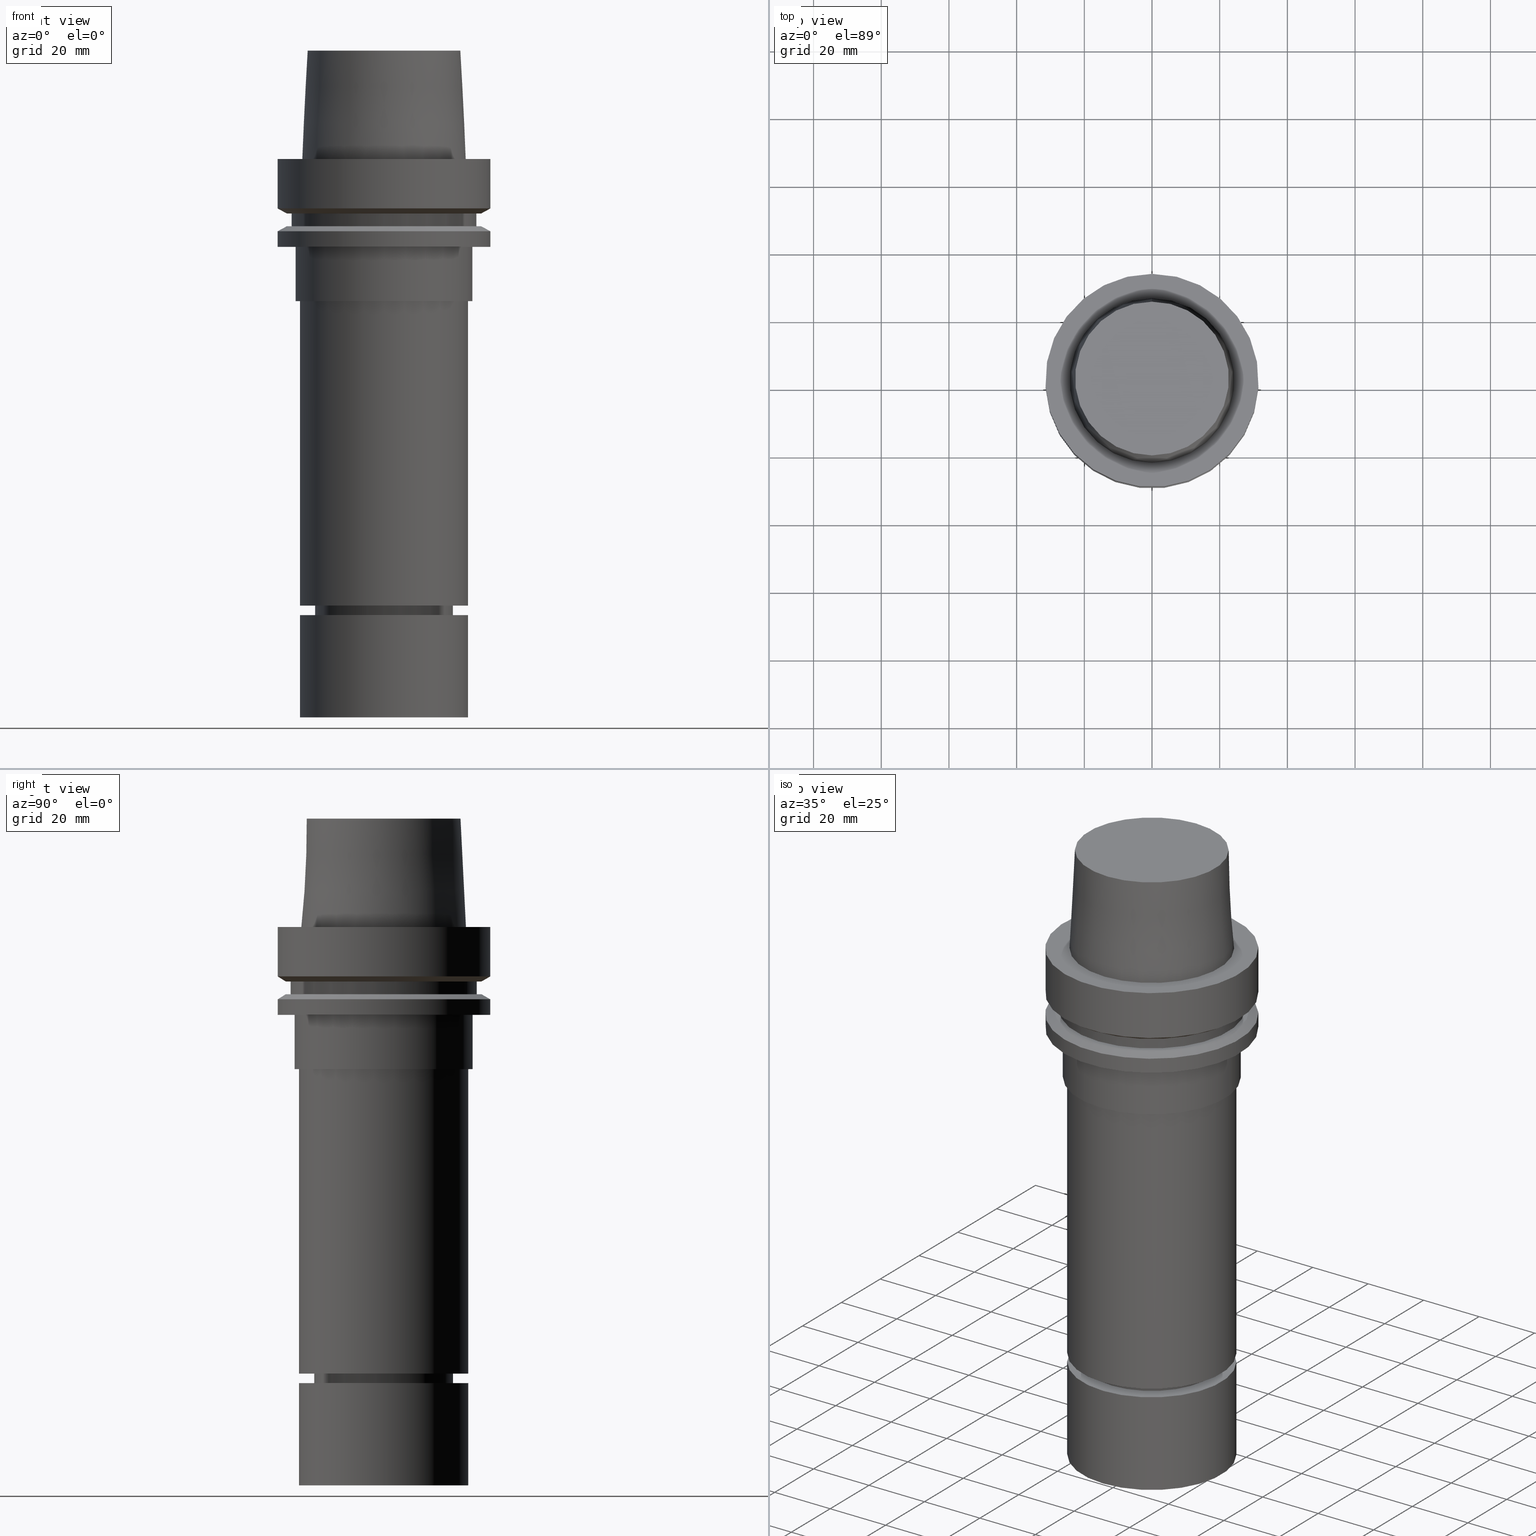
[diagram: canonical four-view strip — front | top / right | iso, engineering-drawing reading convention]
A machine part, canonical four-view strip (front | top / right | iso — engineering-drawing reading convention). The complete STEP part file that produces these views, byte-faithful:
ISO-10303-21;
HEADER;
FILE_DESCRIPTION((''),'1');
FILE_NAME('U:/Translate/02_3D_Field-HP\X2\FF71FF6FFF8CFF9F5916\X0\2013/02_Step_Field-HP\X2\FF71FF6FFF8CFF9F5916\X0\2013/HSK-A63-MEGAER32-165NL.stp','2016-06-22T00:53:57',(''),(''),'Spatial Interop R21 SP3','Kubotek KeyCreator 2011 V10.0.2 (22737)',' ');
FILE_SCHEMA(('automotive_design'));
ENDSEC;
DATA;
#1=MECHANICAL_DESIGN_GEOMETRIC_PRESENTATION_REPRESENTATION(' ',(#14,#15,#16,#17,#18,#19,#20,#21,#22,#23,#24,#25,#26,#27,#28,#29,#30,#31,#32,#33,#34,#35,#36,#37,#38,#39,#40,#41,#42,#43,#44,#45,#46,#47,#48,#49,#50,#51,#52,#53,#54,#55,#56,#57,#58,#59),#10);
#2=PRODUCT_DEFINITION_CONTEXT('',#60,'design');
#3=APPLICATION_PROTOCOL_DEFINITION('INTERNATIONAL STANDARD','automotive_design',1994,#60);
#4=PRODUCT_CATEGORY_RELATIONSHIP('NONE','NONE',#61,#62);
#5=SHAPE_DEFINITION_REPRESENTATION(#63,#64);
#6=PRODUCT_DEFINITION_CONTEXT('',#65,'design');
#7=APPLICATION_PROTOCOL_DEFINITION('INTERNATIONAL STANDARD','automotive_design',1994,#65);
#8=PRODUCT_CATEGORY_RELATIONSHIP('NONE','NONE',#66,#67);
#9=SHAPE_DEFINITION_REPRESENTATION(#68,#69);
#10= (GEOMETRIC_REPRESENTATION_CONTEXT(3)GLOBAL_UNCERTAINTY_ASSIGNED_CONTEXT((#72))GLOBAL_UNIT_ASSIGNED_CONTEXT((#74,#75,#76))REPRESENTATION_CONTEXT('NONE','WORKSPACE'));
#14=STYLED_ITEM('',(#78),#79);
#15=STYLED_ITEM('',(#80,#81),#82);
#16=STYLED_ITEM('',(#83),#84);
#17=STYLED_ITEM('',(#85,#86),#87);
#18=STYLED_ITEM('',(#88,#89),#90);
#19=STYLED_ITEM('',(#91,#92),#93);
#20=STYLED_ITEM('',(#94),#95);
#21=STYLED_ITEM('',(#96,#97),#98);
#22=STYLED_ITEM('',(#99),#100);
#23=STYLED_ITEM('',(#101,#102),#103);
#24=STYLED_ITEM('',(#104),#105);
#25=STYLED_ITEM('',(#106,#107),#108);
#26=STYLED_ITEM('',(#109,#110),#111);
#27=STYLED_ITEM('',(#112,#113),#114);
#28=STYLED_ITEM('',(#115,#116),#117);
#29=STYLED_ITEM('',(#118),#119);
#30=STYLED_ITEM('',(#120,#121),#122);
#31=STYLED_ITEM('',(#123,#124),#125);
#32=STYLED_ITEM('',(#126),#127);
#33=STYLED_ITEM('',(#128),#129);
#34=STYLED_ITEM('',(#130,#131),#132);
#35=STYLED_ITEM('',(#133),#134);
#36=STYLED_ITEM('',(#135,#136),#137);
#37=STYLED_ITEM('',(#138),#139);
#38=STYLED_ITEM('',(#140,#141),#142);
#39=STYLED_ITEM('',(#143,#144),#145);
#40=STYLED_ITEM('',(#146,#147),#148);
#41=STYLED_ITEM('',(#149),#150);
#42=STYLED_ITEM('',(#151),#152);
#43=STYLED_ITEM('',(#153),#154);
#44=STYLED_ITEM('',(#155),#156);
#45=STYLED_ITEM('',(#157,#158),#159);
#46=STYLED_ITEM('',(#160,#161),#162);
#47=STYLED_ITEM('',(#163),#164);
#48=STYLED_ITEM('',(#165,#166),#167);
#49=STYLED_ITEM('',(#168,#169),#170);
#50=STYLED_ITEM('',(#171),#172);
#51=STYLED_ITEM('',(#173,#174),#175);
#52=STYLED_ITEM('',(#176),#177);
#53=STYLED_ITEM('',(#178,#179),#180);
#54=STYLED_ITEM('',(#181),#182);
#55=STYLED_ITEM('',(#183,#184),#185);
#56=STYLED_ITEM('',(#186,#187),#188);
#57=STYLED_ITEM('',(#189),#190);
#58=STYLED_ITEM('',(#191),#192);
#59=STYLED_ITEM('',(#193),#194);
#60=APPLICATION_CONTEXT(' ');
#61=PRODUCT_CATEGORY('part','NONE');
#62=PRODUCT_RELATED_PRODUCT_CATEGORY('detail',' ',(#195));
#63=PRODUCT_DEFINITION_SHAPE('NONE','NONE',#196);
#64=ADVANCED_BREP_SHAPE_REPRESENTATION('Unnamed[1]',(#175,#197),#10);
#65=APPLICATION_CONTEXT(' ');
#66=PRODUCT_CATEGORY('part','NONE');
#67=PRODUCT_RELATED_PRODUCT_CATEGORY('detail',' ',(#198));
#68=PRODUCT_DEFINITION_SHAPE('NONE','NONE',#199);
#69=ADVANCED_BREP_SHAPE_REPRESENTATION('Unnamed[1]',(#114,#200),#10);
#72=UNCERTAINTY_MEASURE_WITH_UNIT(LENGTH_MEASURE(1.0E-006),#74,'','');
#74= (CONVERSION_BASED_UNIT('MILLIMETRE',#203)LENGTH_UNIT()NAMED_UNIT(#206));
#75= (NAMED_UNIT(#208)PLANE_ANGLE_UNIT()SI_UNIT($,.RADIAN.));
#76= (NAMED_UNIT(#208)SOLID_ANGLE_UNIT()SI_UNIT($,.STERADIAN.));
#78=PRESENTATION_STYLE_ASSIGNMENT((#214));
#79=EDGE_CURVE('Unnamed[1]',#215,#215,#216,.T.);
#80=PRESENTATION_STYLE_ASSIGNMENT((#217));
#81=PRESENTATION_STYLE_ASSIGNMENT((#218));
#82=ADVANCED_FACE('Unnamed[1]',(#219,#220),#221,.T.);
#83=PRESENTATION_STYLE_ASSIGNMENT((#222));
#84=EDGE_CURVE('Unnamed[1]',#223,#223,#224,.T.);
#85=PRESENTATION_STYLE_ASSIGNMENT((#225));
#86=PRESENTATION_STYLE_ASSIGNMENT((#226));
#87=ADVANCED_FACE('Unnamed[1]',(#227,#228),#229,.T.);
#88=PRESENTATION_STYLE_ASSIGNMENT((#230));
#89=PRESENTATION_STYLE_ASSIGNMENT((#231));
#90=ADVANCED_FACE('Unnamed[1]',(#232,#233),#234,.T.);
#91=PRESENTATION_STYLE_ASSIGNMENT((#235));
#92=PRESENTATION_STYLE_ASSIGNMENT((#236));
#93=ADVANCED_FACE('Unnamed[1]',(#237,#238),#239,.T.);
#94=PRESENTATION_STYLE_ASSIGNMENT((#240));
#95=EDGE_CURVE('Unnamed[1]',#241,#241,#242,.T.);
#96=PRESENTATION_STYLE_ASSIGNMENT((#243));
#97=PRESENTATION_STYLE_ASSIGNMENT((#244));
#98=ADVANCED_FACE('Unnamed[1]',(#245,#246),#247,.T.);
#99=PRESENTATION_STYLE_ASSIGNMENT((#248));
#100=EDGE_CURVE('Unnamed[1]',#249,#249,#250,.T.);
#101=PRESENTATION_STYLE_ASSIGNMENT((#251));
#102=PRESENTATION_STYLE_ASSIGNMENT((#252));
#103=ADVANCED_FACE('Unnamed[1]',(#253,#254),#255,.T.);
#104=PRESENTATION_STYLE_ASSIGNMENT((#256));
#105=EDGE_CURVE('Unnamed[1]',#257,#257,#258,.T.);
#106=PRESENTATION_STYLE_ASSIGNMENT((#259));
#107=PRESENTATION_STYLE_ASSIGNMENT((#260));
#108=ADVANCED_FACE('Unnamed[1]',(#261),#262,.T.);
#109=PRESENTATION_STYLE_ASSIGNMENT((#263));
#110=PRESENTATION_STYLE_ASSIGNMENT((#264));
#111=ADVANCED_FACE('Unnamed[1]',(#265,#266),#267,.T.);
#112=PRESENTATION_STYLE_ASSIGNMENT((#268));
#113=PRESENTATION_STYLE_ASSIGNMENT((#269));
#114=MANIFOLD_SOLID_BREP('Unnamed[1]',#270);
#115=PRESENTATION_STYLE_ASSIGNMENT((#271));
#116=PRESENTATION_STYLE_ASSIGNMENT((#272));
#117=ADVANCED_FACE('Unnamed[1]',(#273,#274),#275,.T.);
#118=PRESENTATION_STYLE_ASSIGNMENT((#276));
#119=EDGE_CURVE('Unnamed[1]',#277,#277,#278,.T.);
#120=PRESENTATION_STYLE_ASSIGNMENT((#279));
#121=PRESENTATION_STYLE_ASSIGNMENT((#280));
#122=ADVANCED_FACE('Unnamed[1]',(#281),#282,.T.);
#123=PRESENTATION_STYLE_ASSIGNMENT((#283));
#124=PRESENTATION_STYLE_ASSIGNMENT((#284));
#125=ADVANCED_FACE('Unnamed[1]',(#285),#286,.T.);
#126=PRESENTATION_STYLE_ASSIGNMENT((#287));
#127=EDGE_CURVE('Unnamed[1]',#288,#288,#289,.T.);
#128=PRESENTATION_STYLE_ASSIGNMENT((#290));
#129=EDGE_CURVE('Unnamed[1]',#291,#291,#292,.T.);
#130=PRESENTATION_STYLE_ASSIGNMENT((#293));
#131=PRESENTATION_STYLE_ASSIGNMENT((#294));
#132=ADVANCED_FACE('Unnamed[1]',(#295,#296),#297,.T.);
#133=PRESENTATION_STYLE_ASSIGNMENT((#298));
#134=EDGE_CURVE('Unnamed[1]',#299,#299,#300,.T.);
#135=PRESENTATION_STYLE_ASSIGNMENT((#301));
#136=PRESENTATION_STYLE_ASSIGNMENT((#302));
#137=ADVANCED_FACE('Unnamed[1]',(#303,#304),#305,.T.);
#138=PRESENTATION_STYLE_ASSIGNMENT((#306));
#139=EDGE_CURVE('Unnamed[1]',#307,#307,#308,.T.);
#140=PRESENTATION_STYLE_ASSIGNMENT((#309));
#141=PRESENTATION_STYLE_ASSIGNMENT((#310));
#142=ADVANCED_FACE('Unnamed[1]',(#311,#312),#313,.T.);
#143=PRESENTATION_STYLE_ASSIGNMENT((#314));
#144=PRESENTATION_STYLE_ASSIGNMENT((#315));
#145=ADVANCED_FACE('Unnamed[1]',(#316,#317),#318,.T.);
#146=PRESENTATION_STYLE_ASSIGNMENT((#319));
#147=PRESENTATION_STYLE_ASSIGNMENT((#320));
#148=ADVANCED_FACE('Unnamed[1]',(#321,#322),#323,.T.);
#149=PRESENTATION_STYLE_ASSIGNMENT((#324));
#150=EDGE_CURVE('Unnamed[1]',#325,#325,#326,.T.);
#151=PRESENTATION_STYLE_ASSIGNMENT((#327));
#152=EDGE_CURVE('Unnamed[1]',#328,#328,#329,.T.);
#153=PRESENTATION_STYLE_ASSIGNMENT((#330));
#154=EDGE_CURVE('Unnamed[1]',#331,#331,#332,.T.);
#155=PRESENTATION_STYLE_ASSIGNMENT((#333));
#156=EDGE_CURVE('Unnamed[1]',#334,#334,#335,.T.);
#157=PRESENTATION_STYLE_ASSIGNMENT((#336));
#158=PRESENTATION_STYLE_ASSIGNMENT((#337));
#159=ADVANCED_FACE('Unnamed[1]',(#338),#339,.T.);
#160=PRESENTATION_STYLE_ASSIGNMENT((#340));
#161=PRESENTATION_STYLE_ASSIGNMENT((#341));
#162=ADVANCED_FACE('Unnamed[1]',(#342,#343),#344,.T.);
#163=PRESENTATION_STYLE_ASSIGNMENT((#345));
#164=EDGE_CURVE('Unnamed[1]',#346,#346,#347,.T.);
#165=PRESENTATION_STYLE_ASSIGNMENT((#348));
#166=PRESENTATION_STYLE_ASSIGNMENT((#349));
#167=ADVANCED_FACE('Unnamed[1]',(#350,#351),#352,.T.);
#168=PRESENTATION_STYLE_ASSIGNMENT((#353));
#169=PRESENTATION_STYLE_ASSIGNMENT((#354));
#170=ADVANCED_FACE('Unnamed[1]',(#355,#356),#357,.T.);
#171=PRESENTATION_STYLE_ASSIGNMENT((#358));
#172=EDGE_CURVE('Unnamed[1]',#359,#359,#360,.T.);
#173=PRESENTATION_STYLE_ASSIGNMENT((#361));
#174=PRESENTATION_STYLE_ASSIGNMENT((#362));
#175=MANIFOLD_SOLID_BREP('Unnamed[1]',#363);
#176=PRESENTATION_STYLE_ASSIGNMENT((#364));
#177=EDGE_CURVE('Unnamed[1]',#365,#365,#366,.T.);
#178=PRESENTATION_STYLE_ASSIGNMENT((#367));
#179=PRESENTATION_STYLE_ASSIGNMENT((#368));
#180=ADVANCED_FACE('Unnamed[1]',(#369,#370),#371,.T.);
#181=PRESENTATION_STYLE_ASSIGNMENT((#372));
#182=EDGE_CURVE('Unnamed[1]',#373,#373,#374,.T.);
#183=PRESENTATION_STYLE_ASSIGNMENT((#375));
#184=PRESENTATION_STYLE_ASSIGNMENT((#376));
#185=ADVANCED_FACE('Unnamed[1]',(#377,#378),#379,.T.);
#186=PRESENTATION_STYLE_ASSIGNMENT((#380));
#187=PRESENTATION_STYLE_ASSIGNMENT((#381));
#188=ADVANCED_FACE('Unnamed[1]',(#382,#383),#384,.T.);
#189=PRESENTATION_STYLE_ASSIGNMENT((#385));
#190=EDGE_CURVE('Unnamed[1]',#386,#386,#387,.T.);
#191=PRESENTATION_STYLE_ASSIGNMENT((#388));
#192=EDGE_CURVE('Unnamed[1]',#389,#389,#390,.T.);
#193=PRESENTATION_STYLE_ASSIGNMENT((#391));
#194=EDGE_CURVE('Unnamed[1]',#392,#392,#393,.T.);
#195=PRODUCT('Unnamed[1]','Unnamed[1]','PART-Unnamed[1]-DESC',(#394));
#196=PRODUCT_DEFINITION('NONE','NONE',#395,#2);
#197=AXIS2_PLACEMENT_3D('',#396,#397,#398);
#198=PRODUCT('Unnamed[1]','Unnamed[1]','PART-Unnamed[1]-DESC',(#399));
#199=PRODUCT_DEFINITION('NONE','NONE',#400,#6);
#200=AXIS2_PLACEMENT_3D('',#401,#402,#403);
#203=LENGTH_MEASURE_WITH_UNIT(LENGTH_MEASURE(1.0),#404);
#206=DIMENSIONAL_EXPONENTS(1.0,0.0,0.0,0.0,0.0,0.0,0.0);
#208=DIMENSIONAL_EXPONENTS(0.0,0.0,0.0,0.0,0.0,0.0,0.0);
#214=CURVE_STYLE('',#405,POSITIVE_LENGTH_MEASURE(1000.0),#406);
#215=VERTEX_POINT('',#407);
#216=CIRCLE('',#408,24.315);
#217=SURFACE_STYLE_USAGE(.BOTH.,#409);
#218=CURVE_STYLE('',#410,POSITIVE_LENGTH_MEASURE(1000.0),#411);
#219=FACE_BOUND('',#412,.T.);
#220=FACE_BOUND('',#413,.T.);
#221=CONICAL_SURFACE('',#414,30.1987976320959,1.04719755119657);
#222=CURVE_STYLE('',#415,POSITIVE_LENGTH_MEASURE(1000.0),#416);
#223=VERTEX_POINT('',#417);
#224=CIRCLE('',#418,20.0);
#225=SURFACE_STYLE_USAGE(.BOTH.,#419);
#226=CURVE_STYLE('',#420,POSITIVE_LENGTH_MEASURE(1000.0),#421);
#227=FACE_BOUND('',#422,.T.);
#228=FACE_BOUND('',#423,.T.);
#229=CYLINDRICAL_SURFACE('',#424,25.0);
#230=SURFACE_STYLE_USAGE(.BOTH.,#425);
#231=CURVE_STYLE('',#426,POSITIVE_LENGTH_MEASURE(1000.0),#427);
#232=FACE_BOUND('',#428,.T.);
#233=FACE_BOUND('',#429,.T.);
#234=CONICAL_SURFACE('',#430,19.4499999999999,0.523598775598222);
#235=SURFACE_STYLE_USAGE(.BOTH.,#431);
#236=CURVE_STYLE('',#432,POSITIVE_LENGTH_MEASURE(1000.0),#433);
#237=FACE_BOUND('',#434,.T.);
#238=FACE_BOUND('',#435,.T.);
#239=CYLINDRICAL_SURFACE('',#436,31.4999999999999);
#240=CURVE_STYLE('',#437,POSITIVE_LENGTH_MEASURE(1000.0),#438);
#241=VERTEX_POINT('',#439);
#242=CIRCLE('',#440,31.4999999999998);
#243=SURFACE_STYLE_USAGE(.BOTH.,#441);
#244=CURVE_STYLE('',#442,POSITIVE_LENGTH_MEASURE(1000.0),#443);
#245=FACE_OUTER_BOUND('',#444,.T.);
#246=FACE_BOUND('',#445,.T.);
#247=PLANE('',#446);
#248=CURVE_STYLE('',#447,POSITIVE_LENGTH_MEASURE(1000.0),#448);
#249=VERTEX_POINT('',#449);
#250=CIRCLE('',#450,20.0000000000001);
#251=SURFACE_STYLE_USAGE(.BOTH.,#451);
#252=CURVE_STYLE('',#452,POSITIVE_LENGTH_MEASURE(1000.0),#453);
#253=FACE_OUTER_BOUND('',#454,.T.);
#254=FACE_BOUND('',#455,.T.);
#255=PLANE('',#456);
#256=CURVE_STYLE('',#457,POSITIVE_LENGTH_MEASURE(1000.0),#458);
#257=VERTEX_POINT('',#459);
#258=CIRCLE('',#460,27.5);
#259=SURFACE_STYLE_USAGE(.BOTH.,#461);
#260=CURVE_STYLE('',#462,POSITIVE_LENGTH_MEASURE(1000.0),#463);
#261=FACE_OUTER_BOUND('',#464,.T.);
#262=PLANE('',#465);
#263=SURFACE_STYLE_USAGE(.BOTH.,#466);
#264=CURVE_STYLE('',#467,POSITIVE_LENGTH_MEASURE(1000.0),#468);
#265=FACE_BOUND('',#469,.T.);
#266=FACE_OUTER_BOUND('',#470,.T.);
#267=PLANE('',#471);
#268=SURFACE_STYLE_USAGE(.BOTH.,#472);
#269=CURVE_STYLE('',#473,POSITIVE_LENGTH_MEASURE(1000.0),#474);
#270=CLOSED_SHELL('',(#122,#108,#87));
#271=SURFACE_STYLE_USAGE(.BOTH.,#475);
#272=CURVE_STYLE('',#476,POSITIVE_LENGTH_MEASURE(1000.0),#477);
#273=FACE_BOUND('',#478,.T.);
#274=FACE_BOUND('',#479,.T.);
#275=CONICAL_SURFACE('',#480,20.2500000000006,0.766162649696552);
#276=CURVE_STYLE('',#481,POSITIVE_LENGTH_MEASURE(1000.0),#482);
#277=VERTEX_POINT('',#483);
#278=CIRCLE('',#484,22.715);
#279=SURFACE_STYLE_USAGE(.BOTH.,#485);
#280=CURVE_STYLE('',#486,POSITIVE_LENGTH_MEASURE(1000.0),#487);
#281=FACE_OUTER_BOUND('',#488,.T.);
#282=PLANE('',#489);
#283=SURFACE_STYLE_USAGE(.BOTH.,#490);
#284=CURVE_STYLE('',#491,POSITIVE_LENGTH_MEASURE(1000.0),#492);
#285=FACE_OUTER_BOUND('',#493,.T.);
#286=PLANE('',#494);
#287=CURVE_STYLE('',#495,POSITIVE_LENGTH_MEASURE(1000.0),#496);
#288=VERTEX_POINT('',#497);
#289=CIRCLE('',#498,26.3);
#290=CURVE_STYLE('',#499,POSITIVE_LENGTH_MEASURE(1000.0),#500);
#291=VERTEX_POINT('',#501);
#292=CIRCLE('',#502,31.5);
#293=SURFACE_STYLE_USAGE(.BOTH.,#503);
#294=CURVE_STYLE('',#504,POSITIVE_LENGTH_MEASURE(1000.0),#505);
#295=FACE_BOUND('',#506,.T.);
#296=FACE_BOUND('',#507,.T.);
#297=CYLINDRICAL_SURFACE('',#508,25.0);
#298=CURVE_STYLE('',#509,POSITIVE_LENGTH_MEASURE(1000.0),#510);
#299=VERTEX_POINT('',#511);
#300=CIRCLE('',#512,25.0);
#301=SURFACE_STYLE_USAGE(.BOTH.,#513);
#302=CURVE_STYLE('',#514,POSITIVE_LENGTH_MEASURE(1000.0),#515);
#303=FACE_OUTER_BOUND('',#516,.T.);
#304=FACE_BOUND('',#517,.T.);
#305=PLANE('',#518);
#306=CURVE_STYLE('',#519,POSITIVE_LENGTH_MEASURE(1000.0),#520);
#307=VERTEX_POINT('',#521);
#308=CIRCLE('',#522,25.0);
#309=SURFACE_STYLE_USAGE(.BOTH.,#523);
#310=CURVE_STYLE('',#524,POSITIVE_LENGTH_MEASURE(1000.0),#525);
#311=FACE_BOUND('',#526,.T.);
#312=FACE_BOUND('',#527,.T.);
#313=CYLINDRICAL_SURFACE('',#528,31.5);
#314=SURFACE_STYLE_USAGE(.BOTH.,#529);
#315=CURVE_STYLE('',#530,POSITIVE_LENGTH_MEASURE(1000.0),#531);
#316=FACE_OUTER_BOUND('',#532,.T.);
#317=FACE_BOUND('',#533,.T.);
#318=PLANE('',#534);
#319=SURFACE_STYLE_USAGE(.BOTH.,#535);
#320=CURVE_STYLE('',#536,POSITIVE_LENGTH_MEASURE(1000.0),#537);
#321=FACE_BOUND('',#538,.T.);
#322=FACE_BOUND('',#539,.T.);
#323=CONICAL_SURFACE('',#540,30.1987976320959,1.04719755119657);
#324=CURVE_STYLE('',#541,POSITIVE_LENGTH_MEASURE(1000.0),#542);
#325=VERTEX_POINT('',#543);
#326=CIRCLE('',#544,26.3);
#327=CURVE_STYLE('',#545,POSITIVE_LENGTH_MEASURE(1000.0),#546);
#328=VERTEX_POINT('',#547);
#329=CIRCLE('',#548,27.4999999999989);
#330=CURVE_STYLE('',#549,POSITIVE_LENGTH_MEASURE(1000.0),#550);
#331=VERTEX_POINT('',#551);
#332=CIRCLE('',#552,18.8999999999997);
#333=CURVE_STYLE('',#553,POSITIVE_LENGTH_MEASURE(1000.0),#554);
#334=VERTEX_POINT('',#555);
#335=CIRCLE('',#556,20.5000000000012);
#336=SURFACE_STYLE_USAGE(.BOTH.,#557);
#337=CURVE_STYLE('',#558,POSITIVE_LENGTH_MEASURE(1000.0),#559);
#338=FACE_OUTER_BOUND('',#560,.T.);
#339=PLANE('',#561);
#340=SURFACE_STYLE_USAGE(.BOTH.,#562);
#341=CURVE_STYLE('',#563,POSITIVE_LENGTH_MEASURE(1000.0),#564);
#342=FACE_BOUND('',#565,.T.);
#343=FACE_BOUND('',#566,.T.);
#344=CYLINDRICAL_SURFACE('',#567,26.3);
#345=CURVE_STYLE('',#568,POSITIVE_LENGTH_MEASURE(1000.0),#569);
#346=VERTEX_POINT('',#570);
#347=CIRCLE('',#571,28.8975952641919);
#348=SURFACE_STYLE_USAGE(.BOTH.,#572);
#349=CURVE_STYLE('',#573,POSITIVE_LENGTH_MEASURE(1000.0),#574);
#350=FACE_BOUND('',#575,.T.);
#351=FACE_BOUND('',#576,.T.);
#352=CYLINDRICAL_SURFACE('',#577,20.0);
#353=SURFACE_STYLE_USAGE(.BOTH.,#578);
#354=CURVE_STYLE('',#579,POSITIVE_LENGTH_MEASURE(1000.0),#580);
#355=FACE_BOUND('',#581,.T.);
#356=FACE_BOUND('',#582,.T.);
#357=CYLINDRICAL_SURFACE('',#583,20.4999999999961);
#358=CURVE_STYLE('',#584,POSITIVE_LENGTH_MEASURE(1000.0),#585);
#359=VERTEX_POINT('',#586);
#360=CIRCLE('',#587,31.5000000000001);
#361=SURFACE_STYLE_USAGE(.BOTH.,#588);
#362=CURVE_STYLE('',#589,POSITIVE_LENGTH_MEASURE(1000.0),#590);
#363=CLOSED_SHELL('',(#159,#90,#167,#117,#170,#137,#132,#145,#162,#103,#93,#82,#111,#185,#98,#148,#142,#180,#188,#125));
#364=CURVE_STYLE('',#591,POSITIVE_LENGTH_MEASURE(1000.0),#592);
#365=VERTEX_POINT('',#593);
#366=CIRCLE('',#594,25.0);
#367=SURFACE_STYLE_USAGE(.BOTH.,#595);
#368=CURVE_STYLE('',#596,POSITIVE_LENGTH_MEASURE(1000.0),#597);
#369=FACE_BOUND('',#598,.T.);
#370=FACE_OUTER_BOUND('',#599,.T.);
#371=PLANE('',#600);
#372=CURVE_STYLE('',#601,POSITIVE_LENGTH_MEASURE(1000.0),#602);
#373=VERTEX_POINT('',#603);
#374=CIRCLE('',#604,20.4999999999911);
#375=SURFACE_STYLE_USAGE(.BOTH.,#605);
#376=CURVE_STYLE('',#606,POSITIVE_LENGTH_MEASURE(1000.0),#607);
#377=FACE_BOUND('',#608,.T.);
#378=FACE_BOUND('',#609,.T.);
#379=CYLINDRICAL_SURFACE('',#610,27.4999999999994);
#380=SURFACE_STYLE_USAGE(.BOTH.,#611);
#381=CURVE_STYLE('',#612,POSITIVE_LENGTH_MEASURE(1000.0),#613);
#382=FACE_BOUND('',#614,.T.);
#383=FACE_BOUND('',#615,.T.);
#384=CONICAL_SURFACE('',#616,23.515,0.0499583957219433);
#385=CURVE_STYLE('',#617,POSITIVE_LENGTH_MEASURE(1000.0),#618);
#386=VERTEX_POINT('',#619);
#387=CIRCLE('',#620,28.8975952641919);
#388=CURVE_STYLE('',#621,POSITIVE_LENGTH_MEASURE(1000.0),#622);
#389=VERTEX_POINT('',#623);
#390=CIRCLE('',#624,25.0);
#391=CURVE_STYLE('',#625,POSITIVE_LENGTH_MEASURE(1000.0),#626);
#392=VERTEX_POINT('',#627);
#393=CIRCLE('',#628,31.5);
#394=PRODUCT_CONTEXT('',#60,'mechanical');
#395=PRODUCT_DEFINITION_FORMATION_WITH_SPECIFIED_SOURCE(' ','NONE',#195,.NOT_KNOWN.);
#396=CARTESIAN_POINT('',(0.0,0.0,0.0));
#397=DIRECTION('',(0.0,0.0,1.0));
#398=DIRECTION('',(1.0,0.0,0.0));
#399=PRODUCT_CONTEXT('',#65,'mechanical');
#400=PRODUCT_DEFINITION_FORMATION_WITH_SPECIFIED_SOURCE(' ','NONE',#198,.NOT_KNOWN.);
#401=CARTESIAN_POINT('',(0.0,0.0,0.0));
#402=DIRECTION('',(0.0,0.0,1.0));
#403=DIRECTION('',(1.0,0.0,0.0));
#404= (NAMED_UNIT(#206)LENGTH_UNIT()SI_UNIT(.MILLI.,.METRE.));
#405=DRAUGHTING_PRE_DEFINED_CURVE_FONT('continuous');
#406=COLOUR_RGB('',0.0,1.0,0.0);
#407=CARTESIAN_POINT('',(-2.99705514225764E-031,24.315,2.97772869212679E-015));
#408=AXIS2_PLACEMENT_3D('',#630,#631,#632);
#409=SURFACE_SIDE_STYLE('',(#633));
#410=DRAUGHTING_PRE_DEFINED_CURVE_FONT('continuous');
#411=COLOUR_RGB('',0.0,1.0,0.0);
#412=EDGE_LOOP('',(#634));
#413=EDGE_LOOP('',(#635));
#414=AXIS2_PLACEMENT_3D('',#636,#637,#638);
#415=DRAUGHTING_PRE_DEFINED_CURVE_FONT('continuous');
#416=COLOUR_RGB('',0.0,1.0,0.0);
#417=CARTESIAN_POINT('',(8.49482973562113E-015,20.0,-138.73109767707));
#418=AXIS2_PLACEMENT_3D('',#639,#640,#641);
#419=SURFACE_SIDE_STYLE('',(#642));
#420=DRAUGHTING_PRE_DEFINED_CURVE_FONT('continuous');
#421=COLOUR_RGB('',0.0,1.0,0.0);
#422=EDGE_LOOP('',(#643));
#423=EDGE_LOOP('',(#644));
#424=AXIS2_PLACEMENT_3D('',#645,#646,#647);
#425=SURFACE_SIDE_STYLE('',(#648));
#426=DRAUGHTING_PRE_DEFINED_CURVE_FONT('continuous');
#427=COLOUR_RGB('',0.0,1.0,0.0);
#428=EDGE_LOOP('',(#649));
#429=EDGE_LOOP('',(#650));
#430=AXIS2_PLACEMENT_3D('',#651,#652,#653);
#431=SURFACE_SIDE_STYLE('',(#654));
#432=DRAUGHTING_PRE_DEFINED_CURVE_FONT('continuous');
#433=COLOUR_RGB('',0.0,1.0,0.0);
#434=EDGE_LOOP('',(#655));
#435=EDGE_LOOP('',(#656));
#436=AXIS2_PLACEMENT_3D('',#657,#658,#659);
#437=DRAUGHTING_PRE_DEFINED_CURVE_FONT('continuous');
#438=COLOUR_RGB('',0.0,1.0,0.0);
#439=CARTESIAN_POINT('',(1.59204083889155E-015,31.4999999999998,-25.9999999999999));
#440=AXIS2_PLACEMENT_3D('',#660,#661,#662);
#441=SURFACE_SIDE_STYLE('',(#663));
#442=DRAUGHTING_PRE_DEFINED_CURVE_FONT('continuous');
#443=COLOUR_RGB('',0.0,1.0,0.0);
#444=EDGE_LOOP('',(#664));
#445=EDGE_LOOP('',(#665));
#446=AXIS2_PLACEMENT_3D('',#666,#667,#668);
#447=DRAUGHTING_PRE_DEFINED_CURVE_FONT('continuous');
#448=COLOUR_RGB('',0.0,1.0,0.0);
#449=CARTESIAN_POINT('',(9.31311707717483E-015,20.0000000000001,-152.094744111673));
#450=AXIS2_PLACEMENT_3D('',#669,#670,#671);
#451=SURFACE_SIDE_STYLE('',(#672));
#452=DRAUGHTING_PRE_DEFINED_CURVE_FONT('continuous');
#453=COLOUR_RGB('',0.0,1.0,0.0);
#454=EDGE_LOOP('',(#673));
#455=EDGE_LOOP('',(#674));
#456=AXIS2_PLACEMENT_3D('',#675,#676,#677);
#457=DRAUGHTING_PRE_DEFINED_CURVE_FONT('continuous');
#458=COLOUR_RGB('',0.0,1.0,0.0);
#459=CARTESIAN_POINT('',(9.87371481812537E-016,27.5,-16.1249999999997));
#460=AXIS2_PLACEMENT_3D('',#678,#679,#680);
#461=SURFACE_SIDE_STYLE('',(#681));
#462=DRAUGHTING_PRE_DEFINED_CURVE_FONT('continuous');
#463=COLOUR_RGB('',0.0,1.0,0.0);
#464=EDGE_LOOP('',(#682));
#465=AXIS2_PLACEMENT_3D('',#683,#684,#685);
#466=SURFACE_SIDE_STYLE('',(#686));
#467=DRAUGHTING_PRE_DEFINED_CURVE_FONT('continuous');
#468=COLOUR_RGB('',0.0,1.0,0.0);
#469=EDGE_LOOP('',(#687));
#470=EDGE_LOOP('',(#688));
#471=AXIS2_PLACEMENT_3D('',#689,#690,#691);
#472=SURFACE_SIDE_STYLE('',(#692));
#473=DRAUGHTING_PRE_DEFINED_CURVE_FONT('continuous');
#474=COLOUR_RGB('',0.0,1.0,0.0);
#475=SURFACE_SIDE_STYLE('',(#693));
#476=DRAUGHTING_PRE_DEFINED_CURVE_FONT('continuous');
#477=COLOUR_RGB('',0.0,1.0,0.0);
#478=EDGE_LOOP('',(#694));
#479=EDGE_LOOP('',(#695));
#480=AXIS2_PLACEMENT_3D('',#696,#697,#698);
#481=DRAUGHTING_PRE_DEFINED_CURVE_FONT('continuous');
#482=COLOUR_RGB('',0.0,1.0,0.0);
#483=CARTESIAN_POINT('',(-1.95943487863576E-015,22.715,32.0));
#484=AXIS2_PLACEMENT_3D('',#699,#700,#701);
#485=SURFACE_SIDE_STYLE('',(#702));
#486=DRAUGHTING_PRE_DEFINED_CURVE_FONT('continuous');
#487=COLOUR_RGB('',0.0,1.0,0.0);
#488=EDGE_LOOP('',(#703));
#489=AXIS2_PLACEMENT_3D('',#704,#705,#706);
#490=SURFACE_SIDE_STYLE('',(#707));
#491=DRAUGHTING_PRE_DEFINED_CURVE_FONT('continuous');
#492=COLOUR_RGB('',0.0,1.0,0.0);
#493=EDGE_LOOP('',(#708));
#494=AXIS2_PLACEMENT_3D('',#709,#710,#711);
#495=DRAUGHTING_PRE_DEFINED_CURVE_FONT('continuous');
#496=COLOUR_RGB('',0.0,1.0,0.0);
#497=CARTESIAN_POINT('',(2.57175827820944E-015,26.3,-42.0));
#498=AXIS2_PLACEMENT_3D('',#712,#713,#714);
#499=DRAUGHTING_PRE_DEFINED_CURVE_FONT('continuous');
#500=COLOUR_RGB('',0.0,1.0,0.0);
#501=CARTESIAN_POINT('',(1.30899429078397E-015,31.5,-21.3774990747592));
#502=AXIS2_PLACEMENT_3D('',#715,#716,#717);
#503=SURFACE_SIDE_STYLE('',(#718));
#504=DRAUGHTING_PRE_DEFINED_CURVE_FONT('continuous');
#505=COLOUR_RGB('',0.0,1.0,0.0);
#506=EDGE_LOOP('',(#719));
#507=EDGE_LOOP('',(#720));
#508=AXIS2_PLACEMENT_3D('',#721,#722,#723);
#509=DRAUGHTING_PRE_DEFINED_CURVE_FONT('continuous');
#510=COLOUR_RGB('',0.0,1.0,0.0);
#511=CARTESIAN_POINT('',(2.57175827820944E-015,25.0,-42.0));
#512=AXIS2_PLACEMENT_3D('',#724,#725,#726);
#513=SURFACE_SIDE_STYLE('',(#727));
#514=DRAUGHTING_PRE_DEFINED_CURVE_FONT('continuous');
#515=COLOUR_RGB('',0.0,1.0,0.0);
#516=EDGE_LOOP('',(#728));
#517=EDGE_LOOP('',(#729));
#518=AXIS2_PLACEMENT_3D('',#730,#731,#732);
#519=DRAUGHTING_PRE_DEFINED_CURVE_FONT('continuous');
#520=COLOUR_RGB('',0.0,1.0,0.0);
#521=CARTESIAN_POINT('',(8.08267852271583E-015,25.0,-132.000157569404));
#522=AXIS2_PLACEMENT_3D('',#733,#734,#735);
#523=SURFACE_SIDE_STYLE('',(#736));
#524=DRAUGHTING_PRE_DEFINED_CURVE_FONT('continuous');
#525=COLOUR_RGB('',0.0,1.0,0.0);
#526=EDGE_LOOP('',(#737));
#527=EDGE_LOOP('',(#738));
#528=AXIS2_PLACEMENT_3D('',#739,#740,#741);
#529=SURFACE_SIDE_STYLE('',(#742));
#530=DRAUGHTING_PRE_DEFINED_CURVE_FONT('continuous');
#531=COLOUR_RGB('',0.0,1.0,0.0);
#532=EDGE_LOOP('',(#743));
#533=EDGE_LOOP('',(#744));
#534=AXIS2_PLACEMENT_3D('',#745,#746,#747);
#535=SURFACE_SIDE_STYLE('',(#748));
#536=DRAUGHTING_PRE_DEFINED_CURVE_FONT('continuous');
#537=COLOUR_RGB('',0.0,1.0,0.0);
#538=EDGE_LOOP('',(#749));
#539=EDGE_LOOP('',(#750));
#540=AXIS2_PLACEMENT_3D('',#751,#752,#753);
#541=DRAUGHTING_PRE_DEFINED_CURVE_FONT('continuous');
#542=COLOUR_RGB('',0.0,1.0,0.0);
#543=CARTESIAN_POINT('',(1.59204083889154E-015,26.3,-25.9999999999997));
#544=AXIS2_PLACEMENT_3D('',#754,#755,#756);
#545=DRAUGHTING_PRE_DEFINED_CURVE_FONT('continuous');
#546=COLOUR_RGB('',0.0,1.0,0.0);
#547=CARTESIAN_POINT('',(1.21699275665276E-015,27.4999999999989,-19.8750000000013));
#548=AXIS2_PLACEMENT_3D('',#757,#758,#759);
#549=DRAUGHTING_PRE_DEFINED_CURVE_FONT('continuous');
#550=COLOUR_RGB('',0.0,1.0,0.0);
#551=CARTESIAN_POINT('',(9.42978035343463E-015,18.8999999999997,-154.0));
#552=AXIS2_PLACEMENT_3D('',#760,#761,#762);
#553=DRAUGHTING_PRE_DEFINED_CURVE_FONT('continuous');
#554=COLOUR_RGB('',0.0,1.0,0.0);
#555=CARTESIAN_POINT('',(8.46301247845949E-015,20.5000000000012,-138.211482434801));
#556=AXIS2_PLACEMENT_3D('',#763,#764,#765);
#557=SURFACE_SIDE_STYLE('',(#766));
#558=DRAUGHTING_PRE_DEFINED_CURVE_FONT('continuous');
#559=COLOUR_RGB('',0.0,1.0,0.0);
#560=EDGE_LOOP('',(#767));
#561=AXIS2_PLACEMENT_3D('',#768,#769,#770);
#562=SURFACE_SIDE_STYLE('',(#771));
#563=DRAUGHTING_PRE_DEFINED_CURVE_FONT('continuous');
#564=COLOUR_RGB('',0.0,1.0,0.0);
#565=EDGE_LOOP('',(#772));
#566=EDGE_LOOP('',(#773));
#567=AXIS2_PLACEMENT_3D('',#774,#775,#776);
#568=DRAUGHTING_PRE_DEFINED_CURVE_FONT('continuous');
#569=COLOUR_RGB('',0.0,1.0,0.0);
#570=CARTESIAN_POINT('',(9.87371481812551E-016,28.8975952641919,-16.125));
#571=AXIS2_PLACEMENT_3D('',#777,#778,#779);
#572=SURFACE_SIDE_STYLE('',(#780));
#573=DRAUGHTING_PRE_DEFINED_CURVE_FONT('continuous');
#574=COLOUR_RGB('',0.0,1.0,0.0);
#575=EDGE_LOOP('',(#781));
#576=EDGE_LOOP('',(#782));
#577=AXIS2_PLACEMENT_3D('',#783,#784,#785);
#578=SURFACE_SIDE_STYLE('',(#786));
#579=DRAUGHTING_PRE_DEFINED_CURVE_FONT('continuous');
#580=COLOUR_RGB('',0.0,1.0,0.0);
#581=EDGE_LOOP('',(#787));
#582=EDGE_LOOP('',(#788));
#583=AXIS2_PLACEMENT_3D('',#789,#790,#791);
#584=DRAUGHTING_PRE_DEFINED_CURVE_FONT('continuous');
#585=COLOUR_RGB('',0.0,1.0,0.0);
#586=CARTESIAN_POINT('',(-3.88267476788467E-031,31.5000000000001,3.85763741731417E-015));
#587=AXIS2_PLACEMENT_3D('',#792,#793,#794);
#588=SURFACE_SIDE_STYLE('',(#795));
#589=DRAUGHTING_PRE_DEFINED_CURVE_FONT('continuous');
#590=COLOUR_RGB('',0.0,1.0,0.0);
#591=DRAUGHTING_PRE_DEFINED_CURVE_FONT('continuous');
#592=COLOUR_RGB('',0.0,1.0,0.0);
#593=CARTESIAN_POINT('',(1.01033360929657E-014,25.0,-165.0));
#594=AXIS2_PLACEMENT_3D('',#796,#797,#798);
#595=SURFACE_SIDE_STYLE('',(#799));
#596=DRAUGHTING_PRE_DEFINED_CURVE_FONT('continuous');
#597=COLOUR_RGB('',0.0,1.0,0.0);
#598=EDGE_LOOP('',(#800));
#599=EDGE_LOOP('',(#801));
#600=AXIS2_PLACEMENT_3D('',#802,#803,#804);
#601=DRAUGHTING_PRE_DEFINED_CURVE_FONT('continuous');
#602=COLOUR_RGB('',0.0,1.0,0.0);
#603=CARTESIAN_POINT('',(8.08267852271585E-015,20.4999999999911,-132.000157569404));
#604=AXIS2_PLACEMENT_3D('',#805,#806,#807);
#605=SURFACE_SIDE_STYLE('',(#808));
#606=DRAUGHTING_PRE_DEFINED_CURVE_FONT('continuous');
#607=COLOUR_RGB('',0.0,1.0,0.0);
#608=EDGE_LOOP('',(#809));
#609=EDGE_LOOP('',(#810));
#610=AXIS2_PLACEMENT_3D('',#811,#812,#813);
#611=SURFACE_SIDE_STYLE('',(#814));
#612=DRAUGHTING_PRE_DEFINED_CURVE_FONT('continuous');
#613=COLOUR_RGB('',0.0,1.0,0.0);
#614=EDGE_LOOP('',(#815));
#615=EDGE_LOOP('',(#816));
#616=AXIS2_PLACEMENT_3D('',#817,#818,#819);
#617=DRAUGHTING_PRE_DEFINED_CURVE_FONT('continuous');
#618=COLOUR_RGB('',0.0,1.0,0.0);
#619=CARTESIAN_POINT('',(1.21699275665268E-015,28.8975952641919,-19.875));
#620=AXIS2_PLACEMENT_3D('',#820,#821,#822);
#621=DRAUGHTING_PRE_DEFINED_CURVE_FONT('continuous');
#622=COLOUR_RGB('',0.0,1.0,0.0);
#623=CARTESIAN_POINT('',(8.25411942625316E-015,25.0,-134.8));
#624=AXIS2_PLACEMENT_3D('',#823,#824,#825);
#625=DRAUGHTING_PRE_DEFINED_CURVE_FONT('continuous');
#626=COLOUR_RGB('',0.0,1.0,0.0);
#627=CARTESIAN_POINT('',(8.95369947681261E-016,31.5,-14.6225009252407));
#628=AXIS2_PLACEMENT_3D('',#826,#827,#828);
#630=CARTESIAN_POINT('',(0.0,0.0,0.0));
#631=DIRECTION('',(-6.12323399573677E-017,-1.22464679914735E-016,1.0));
#632=DIRECTION('',(-1.23259516440783E-032,1.0,1.22464679914735E-016));
#633=SURFACE_STYLE_FILL_AREA(#829);
#634=ORIENTED_EDGE('',*,*,#190,.F.);
#635=ORIENTED_EDGE('',*,*,#129,.T.);
#636=CARTESIAN_POINT('',(1.26299352371833E-015,2.52598704743665E-015,-20.6262495373796));
#637=DIRECTION('',(6.12323399573677E-017,1.22464679914735E-016,-1.0));
#638=DIRECTION('',(-1.23259516440783E-032,1.0,1.22464679914735E-016));
#639=CARTESIAN_POINT('',(8.49482973562113E-015,1.69896594712423E-014,-138.73109767707));
#640=DIRECTION('',(-6.12323399573677E-017,-1.22464679914735E-016,1.0));
#641=DIRECTION('',(-1.23259516440783E-032,1.0,1.22464679914735E-016));
#642=SURFACE_STYLE_FILL_AREA(#830);
#643=ORIENTED_EDGE('',*,*,#177,.F.);
#644=ORIENTED_EDGE('',*,*,#192,.T.);
#645=CARTESIAN_POINT('',(9.17872775960941E-015,1.83574555192188E-014,-149.9));
#646=DIRECTION('',(6.12323399573677E-017,1.22464679914735E-016,-1.0));
#647=DIRECTION('',(-1.23259516440783E-032,1.0,1.22464679914735E-016));
#648=SURFACE_STYLE_FILL_AREA(#831);
#649=ORIENTED_EDGE('',*,*,#100,.F.);
#650=ORIENTED_EDGE('',*,*,#154,.T.);
#651=CARTESIAN_POINT('',(9.37144871530473E-015,1.87428974306095E-014,-153.047372055837));
#652=DIRECTION('',(-6.12323399573677E-017,-1.22464679914735E-016,1.0));
#653=DIRECTION('',(-1.23259516440783E-032,1.0,1.22464679914735E-016));
#654=SURFACE_STYLE_FILL_AREA(#832);
#655=ORIENTED_EDGE('',*,*,#129,.F.);
#656=ORIENTED_EDGE('',*,*,#95,.T.);
#657=CARTESIAN_POINT('',(1.45051756483776E-015,2.90103512967552E-015,-23.6887495373796));
#658=DIRECTION('',(-6.12323399573677E-017,-1.22464679914735E-016,1.0));
#659=DIRECTION('',(-1.23259516440783E-032,1.0,1.22464679914735E-016));
#660=CARTESIAN_POINT('',(1.59204083889155E-015,3.1840816777831E-015,-25.9999999999999));
#661=DIRECTION('',(-6.12323399573676E-017,-1.22464679914735E-016,1.0));
#662=DIRECTION('',(-1.23259516440783E-032,1.0,1.22464679914735E-016));
#663=SURFACE_STYLE_FILL_AREA(#833);
#664=ORIENTED_EDGE('',*,*,#164,.F.);
#665=ORIENTED_EDGE('',*,*,#105,.T.);
#666=CARTESIAN_POINT('',(9.87371481812544E-016,28.1987976320959,-16.1249999999999));
#667=DIRECTION('',(6.12323399573677E-017,-1.65108768595307E-013,-1.0));
#668=DIRECTION('',(-1.01051690958394E-029,-1.0,1.65108768595307E-013));
#669=CARTESIAN_POINT('',(9.31311707717483E-015,1.86262341543497E-014,-152.094744111673));
#670=DIRECTION('',(-6.12323399573677E-017,-1.22464679914735E-016,1.0));
#671=DIRECTION('',(-1.23259516440783E-032,1.0,1.22464679914735E-016));
#672=SURFACE_STYLE_FILL_AREA(#834);
#673=ORIENTED_EDGE('',*,*,#95,.F.);
#674=ORIENTED_EDGE('',*,*,#150,.T.);
#675=CARTESIAN_POINT('',(1.59204083889155E-015,28.8999999999999,-25.9999999999998));
#676=DIRECTION('',(6.12323399573677E-017,-4.01871712910923E-014,-1.0));
#677=DIRECTION('',(-2.45592738169036E-030,-1.0,4.01871712910923E-014));
#678=CARTESIAN_POINT('',(9.87371481812538E-016,1.97474296362508E-015,-16.1249999999997));
#679=DIRECTION('',(-6.12323399573677E-017,-1.22464679914735E-016,1.0));
#680=DIRECTION('',(-1.23259516440783E-032,1.0,1.22464679914735E-016));
#681=SURFACE_STYLE_FILL_AREA(#835);
#682=ORIENTED_EDGE('',*,*,#192,.F.);
#683=CARTESIAN_POINT('',(8.25411942625316E-015,12.5,-134.8));
#684=DIRECTION('',(-6.12323399573677E-017,-1.22464679914735E-016,1.0));
#685=DIRECTION('',(1.23259516440783E-032,-1.0,-1.22464679914735E-016));
#686=SURFACE_STYLE_FILL_AREA(#836);
#687=ORIENTED_EDGE('',*,*,#152,.F.);
#688=ORIENTED_EDGE('',*,*,#190,.T.);
#689=CARTESIAN_POINT('',(1.21699275665272E-015,28.1987976320954,-19.8750000000006));
#690=DIRECTION('',(-6.12323399573677E-017,-9.58463617675421E-013,1.0));
#691=DIRECTION('',(-5.86937972270006E-029,1.0,9.58463617675421E-013));
#692=SURFACE_STYLE_FILL_AREA(#837);
#693=SURFACE_STYLE_FILL_AREA(#838);
#694=ORIENTED_EDGE('',*,*,#156,.F.);
#695=ORIENTED_EDGE('',*,*,#84,.T.);
#696=CARTESIAN_POINT('',(8.47892110704031E-015,1.69578422140806E-014,-138.471290055936));
#697=DIRECTION('',(-6.12323399573677E-017,-1.22464679914735E-016,1.0));
#698=DIRECTION('',(-1.23259516440783E-032,1.0,1.22464679914735E-016));
#699=CARTESIAN_POINT('',(-1.95943487863576E-015,-3.91886975727153E-015,32.0));
#700=DIRECTION('',(-6.12323399573676E-017,-1.22464679914735E-016,1.0));
#701=DIRECTION('',(-1.23259516440783E-032,1.0,1.22464679914735E-016));
#702=SURFACE_STYLE_FILL_AREA(#839);
#703=ORIENTED_EDGE('',*,*,#177,.T.);
#704=CARTESIAN_POINT('',(1.01033360929657E-014,12.5,-165.0));
#705=DIRECTION('',(6.12323399573677E-017,1.22464679914735E-016,-1.0));
#706=DIRECTION('',(-1.23259516440783E-032,1.0,1.22464679914735E-016));
#707=SURFACE_STYLE_FILL_AREA(#840);
#708=ORIENTED_EDGE('',*,*,#119,.T.);
#709=CARTESIAN_POINT('',(-1.95943487863576E-015,11.3575,32.0));
#710=DIRECTION('',(-6.12323399573677E-017,9.72362339746437E-016,1.0));
#711=DIRECTION('',(5.47128686183263E-032,1.0,-9.72362339746437E-016));
#712=CARTESIAN_POINT('',(2.57175827820944E-015,5.14351655641888E-015,-42.0));
#713=DIRECTION('',(-6.12323399573677E-017,-1.22464679914735E-016,1.0));
#714=DIRECTION('',(-1.23259516440783E-032,1.0,1.22464679914735E-016));
#715=CARTESIAN_POINT('',(1.30899429078397E-015,2.61798858156794E-015,-21.3774990747592));
#716=DIRECTION('',(-6.12323399573677E-017,-1.22464679914735E-016,1.0));
#717=DIRECTION('',(-1.23259516440783E-032,1.0,1.22464679914735E-016));
#718=SURFACE_STYLE_FILL_AREA(#841);
#719=ORIENTED_EDGE('',*,*,#134,.F.);
#720=ORIENTED_EDGE('',*,*,#139,.T.);
#721=CARTESIAN_POINT('',(5.32721840046263E-015,1.06544368009253E-014,-87.0000787847019));
#722=DIRECTION('',(-6.12323399573677E-017,-1.22464679914735E-016,1.0));
#723=DIRECTION('',(-1.23259516440783E-032,1.0,1.22464679914735E-016));
#724=CARTESIAN_POINT('',(2.57175827820944E-015,5.14351655641888E-015,-42.0));
#725=DIRECTION('',(-6.12323399573677E-017,-1.22464679914735E-016,1.0));
#726=DIRECTION('',(-1.23259516440783E-032,1.0,1.22464679914735E-016));
#727=SURFACE_STYLE_FILL_AREA(#842);
#728=ORIENTED_EDGE('',*,*,#139,.F.);
#729=ORIENTED_EDGE('',*,*,#182,.T.);
#730=CARTESIAN_POINT('',(8.08267852271584E-015,22.7499999999956,-132.000157569404));
#731=DIRECTION('',(6.12323399573677E-017,1.07493366972339E-013,-1.0));
#732=DIRECTION('',(6.58689754234314E-030,-1.0,-1.07493366972339E-013));
#733=CARTESIAN_POINT('',(8.08267852271583E-015,1.61653570454317E-014,-132.000157569404));
#734=DIRECTION('',(-6.12323399573677E-017,-1.22464679914735E-016,1.0));
#735=DIRECTION('',(-1.23259516440783E-032,1.0,1.22464679914735E-016));
#736=SURFACE_STYLE_FILL_AREA(#843);
#737=ORIENTED_EDGE('',*,*,#172,.F.);
#738=ORIENTED_EDGE('',*,*,#194,.T.);
#739=CARTESIAN_POINT('',(4.47684973840631E-016,8.95369947681262E-016,-7.31125046262035));
#740=DIRECTION('',(-6.12323399573677E-017,-1.22464679914735E-016,1.0));
#741=DIRECTION('',(-1.23259516440783E-032,1.0,1.22464679914735E-016));
#742=SURFACE_STYLE_FILL_AREA(#844);
#743=ORIENTED_EDGE('',*,*,#127,.F.);
#744=ORIENTED_EDGE('',*,*,#134,.T.);
#745=CARTESIAN_POINT('',(2.57175827820944E-015,25.65,-42.0));
#746=DIRECTION('',(6.12323399573677E-017,1.22464679914735E-016,-1.0));
#747=DIRECTION('',(1.23259516440783E-032,-1.0,-1.22464679914735E-016));
#748=SURFACE_STYLE_FILL_AREA(#845);
#749=ORIENTED_EDGE('',*,*,#194,.F.);
#750=ORIENTED_EDGE('',*,*,#164,.T.);
#751=CARTESIAN_POINT('',(9.41370714746907E-016,1.88274142949381E-015,-15.3737504626203));
#752=DIRECTION('',(-6.12323399573677E-017,-1.22464679914735E-016,1.0));
#753=DIRECTION('',(-1.23259516440783E-032,1.0,1.22464679914735E-016));
#754=CARTESIAN_POINT('',(1.59204083889154E-015,3.18408167778308E-015,-25.9999999999997));
#755=DIRECTION('',(-6.12323399573677E-017,-1.22464679914735E-016,1.0));
#756=DIRECTION('',(-1.23259516440783E-032,1.0,1.22464679914735E-016));
#757=CARTESIAN_POINT('',(1.21699275665276E-015,2.43398551330552E-015,-19.8750000000013));
#758=DIRECTION('',(-6.12323399573677E-017,-1.22464679914735E-016,1.0));
#759=DIRECTION('',(-1.23259516440783E-032,1.0,1.22464679914735E-016));
#760=CARTESIAN_POINT('',(9.42978035343463E-015,1.88595607068693E-014,-154.0));
#761=DIRECTION('',(-6.12323399573677E-017,-1.22464679914735E-016,1.0));
#762=DIRECTION('',(-1.23259516440783E-032,1.0,1.22464679914735E-016));
#763=CARTESIAN_POINT('',(8.46301247845949E-015,1.6926024956919E-014,-138.211482434801));
#764=DIRECTION('',(-6.12323399573677E-017,-1.22464679914735E-016,1.0));
#765=DIRECTION('',(-1.23259516440783E-032,1.0,1.22464679914735E-016));
#766=SURFACE_STYLE_FILL_AREA(#846);
#767=ORIENTED_EDGE('',*,*,#154,.F.);
#768=CARTESIAN_POINT('',(9.42978035343462E-015,9.44999999999987,-154.0));
#769=DIRECTION('',(6.12323399573677E-017,-1.64192709674106E-014,-1.0));
#770=DIRECTION('',(-1.00056322899785E-030,-1.0,1.64192709674106E-014));
#771=SURFACE_STYLE_FILL_AREA(#847);
#772=ORIENTED_EDGE('',*,*,#150,.F.);
#773=ORIENTED_EDGE('',*,*,#127,.T.);
#774=CARTESIAN_POINT('',(2.08189955855049E-015,4.16379911710098E-015,-33.9999999999998));
#775=DIRECTION('',(-6.12323399573677E-017,-1.22464679914735E-016,1.0));
#776=DIRECTION('',(-1.23259516440783E-032,1.0,1.22464679914735E-016));
#777=CARTESIAN_POINT('',(9.87371481812552E-016,1.9747429636251E-015,-16.125));
#778=DIRECTION('',(-6.12323399573677E-017,-1.22464679914735E-016,1.0));
#779=DIRECTION('',(-1.23259516440783E-032,1.0,1.22464679914735E-016));
#780=SURFACE_STYLE_FILL_AREA(#848);
#781=ORIENTED_EDGE('',*,*,#84,.F.);
#782=ORIENTED_EDGE('',*,*,#100,.T.);
#783=CARTESIAN_POINT('',(8.90397340639798E-015,1.7807946812796E-014,-145.412920894372));
#784=DIRECTION('',(-6.12323399573677E-017,-1.22464679914735E-016,1.0));
#785=DIRECTION('',(-1.23259516440783E-032,1.0,1.22464679914735E-016));
#786=SURFACE_STYLE_FILL_AREA(#849);
#787=ORIENTED_EDGE('',*,*,#182,.F.);
#788=ORIENTED_EDGE('',*,*,#156,.T.);
#789=CARTESIAN_POINT('',(8.27284550058767E-015,1.65456910011753E-014,-135.105820002103));
#790=DIRECTION('',(-6.12323399573677E-017,-1.22464679914735E-016,1.0));
#791=DIRECTION('',(-1.23259516440783E-032,1.0,1.22464679914735E-016));
#792=CARTESIAN_POINT('',(0.0,0.0,0.0));
#793=DIRECTION('',(-6.12323399573677E-017,-1.22464679914735E-016,1.0));
#794=DIRECTION('',(-1.23259516440783E-032,1.0,1.22464679914735E-016));
#795=SURFACE_STYLE_FILL_AREA(#850);
#796=CARTESIAN_POINT('',(1.01033360929657E-014,2.02066721859313E-014,-165.0));
#797=DIRECTION('',(6.12323399573677E-017,1.22464679914735E-016,-1.0));
#798=DIRECTION('',(-1.23259516440783E-032,1.0,1.22464679914735E-016));
#799=SURFACE_STYLE_FILL_AREA(#851);
#800=ORIENTED_EDGE('',*,*,#79,.F.);
#801=ORIENTED_EDGE('',*,*,#172,.T.);
#802=CARTESIAN_POINT('',(-3.43986495507116E-031,27.9075,3.41768305472048E-015));
#803=DIRECTION('',(-6.12323399573677E-017,-1.22464679914735E-016,1.0));
#804=DIRECTION('',(-1.23259516440783E-032,1.0,1.22464679914735E-016));
#805=CARTESIAN_POINT('',(8.08267852271585E-015,1.61653570454317E-014,-132.000157569404));
#806=DIRECTION('',(-6.12323399573677E-017,-1.22464679914735E-016,1.0));
#807=DIRECTION('',(-1.23259516440783E-032,1.0,1.22464679914735E-016));
#808=SURFACE_STYLE_FILL_AREA(#852);
#809=ORIENTED_EDGE('',*,*,#105,.F.);
#810=ORIENTED_EDGE('',*,*,#152,.T.);
#811=CARTESIAN_POINT('',(1.10218211923265E-015,2.2043642384653E-015,-18.0000000000005));
#812=DIRECTION('',(-6.12323399573677E-017,-1.22464679914735E-016,1.0));
#813=DIRECTION('',(-1.23259516440783E-032,1.0,1.22464679914735E-016));
#814=SURFACE_STYLE_FILL_AREA(#853);
#815=ORIENTED_EDGE('',*,*,#119,.F.);
#816=ORIENTED_EDGE('',*,*,#79,.T.);
#817=CARTESIAN_POINT('',(-9.79717439317882E-016,-1.95943487863576E-015,16.0));
#818=DIRECTION('',(6.12323399573677E-017,1.22464679914735E-016,-1.0));
#819=DIRECTION('',(-1.23259516440783E-032,1.0,1.22464679914735E-016));
#820=CARTESIAN_POINT('',(1.21699275665268E-015,2.43398551330536E-015,-19.875));
#821=DIRECTION('',(-6.12323399573677E-017,-1.22464679914735E-016,1.0));
#822=DIRECTION('',(-1.23259516440783E-032,1.0,1.22464679914735E-016));
#823=CARTESIAN_POINT('',(8.25411942625316E-015,1.65082388525063E-014,-134.8));
#824=DIRECTION('',(6.12323399573677E-017,1.22464679914735E-016,-1.0));
#825=DIRECTION('',(-1.23259516440783E-032,1.0,1.22464679914735E-016));
#826=CARTESIAN_POINT('',(8.95369947681262E-016,1.79073989536252E-015,-14.6225009252407));
#827=DIRECTION('',(-6.12323399573677E-017,-1.22464679914735E-016,1.0));
#828=DIRECTION('',(-1.23259516440783E-032,1.0,1.22464679914735E-016));
#829=FILL_AREA_STYLE('',(#854));
#830=FILL_AREA_STYLE('',(#855));
#831=FILL_AREA_STYLE('',(#856));
#832=FILL_AREA_STYLE('',(#857));
#833=FILL_AREA_STYLE('',(#858));
#834=FILL_AREA_STYLE('',(#859));
#835=FILL_AREA_STYLE('',(#860));
#836=FILL_AREA_STYLE('',(#861));
#837=FILL_AREA_STYLE('',(#862));
#838=FILL_AREA_STYLE('',(#863));
#839=FILL_AREA_STYLE('',(#864));
#840=FILL_AREA_STYLE('',(#865));
#841=FILL_AREA_STYLE('',(#866));
#842=FILL_AREA_STYLE('',(#867));
#843=FILL_AREA_STYLE('',(#868));
#844=FILL_AREA_STYLE('',(#869));
#845=FILL_AREA_STYLE('',(#870));
#846=FILL_AREA_STYLE('',(#871));
#847=FILL_AREA_STYLE('',(#872));
#848=FILL_AREA_STYLE('',(#873));
#849=FILL_AREA_STYLE('',(#874));
#850=FILL_AREA_STYLE('',(#875));
#851=FILL_AREA_STYLE('',(#876));
#852=FILL_AREA_STYLE('',(#877));
#853=FILL_AREA_STYLE('',(#878));
#854=FILL_AREA_STYLE_COLOUR('',#879);
#855=FILL_AREA_STYLE_COLOUR('',#880);
#856=FILL_AREA_STYLE_COLOUR('',#881);
#857=FILL_AREA_STYLE_COLOUR('',#882);
#858=FILL_AREA_STYLE_COLOUR('',#883);
#859=FILL_AREA_STYLE_COLOUR('',#884);
#860=FILL_AREA_STYLE_COLOUR('',#885);
#861=FILL_AREA_STYLE_COLOUR('',#886);
#862=FILL_AREA_STYLE_COLOUR('',#887);
#863=FILL_AREA_STYLE_COLOUR('',#888);
#864=FILL_AREA_STYLE_COLOUR('',#889);
#865=FILL_AREA_STYLE_COLOUR('',#890);
#866=FILL_AREA_STYLE_COLOUR('',#891);
#867=FILL_AREA_STYLE_COLOUR('',#892);
#868=FILL_AREA_STYLE_COLOUR('',#893);
#869=FILL_AREA_STYLE_COLOUR('',#894);
#870=FILL_AREA_STYLE_COLOUR('',#895);
#871=FILL_AREA_STYLE_COLOUR('',#896);
#872=FILL_AREA_STYLE_COLOUR('',#897);
#873=FILL_AREA_STYLE_COLOUR('',#898);
#874=FILL_AREA_STYLE_COLOUR('',#899);
#875=FILL_AREA_STYLE_COLOUR('',#900);
#876=FILL_AREA_STYLE_COLOUR('',#901);
#877=FILL_AREA_STYLE_COLOUR('',#902);
#878=FILL_AREA_STYLE_COLOUR('',#903);
#879=COLOUR_RGB('',0.0,1.0,0.0);
#880=COLOUR_RGB('',0.0,1.0,0.0);
#881=COLOUR_RGB('',0.0,1.0,0.0);
#882=COLOUR_RGB('',0.0,1.0,0.0);
#883=COLOUR_RGB('',0.0,1.0,0.0);
#884=COLOUR_RGB('',0.0,1.0,0.0);
#885=COLOUR_RGB('',0.0,1.0,0.0);
#886=COLOUR_RGB('',0.0,1.0,0.0);
#887=COLOUR_RGB('',0.0,1.0,0.0);
#888=COLOUR_RGB('',0.0,1.0,0.0);
#889=COLOUR_RGB('',0.0,1.0,0.0);
#890=COLOUR_RGB('',0.0,1.0,0.0);
#891=COLOUR_RGB('',0.0,1.0,0.0);
#892=COLOUR_RGB('',0.0,1.0,0.0);
#893=COLOUR_RGB('',0.0,1.0,0.0);
#894=COLOUR_RGB('',0.0,1.0,0.0);
#895=COLOUR_RGB('',0.0,1.0,0.0);
#896=COLOUR_RGB('',0.0,1.0,0.0);
#897=COLOUR_RGB('',0.0,1.0,0.0);
#898=COLOUR_RGB('',0.0,1.0,0.0);
#899=COLOUR_RGB('',0.0,1.0,0.0);
#900=COLOUR_RGB('',0.0,1.0,0.0);
#901=COLOUR_RGB('',0.0,1.0,0.0);
#902=COLOUR_RGB('',0.0,1.0,0.0);
#903=COLOUR_RGB('',0.0,1.0,0.0);
ENDSEC;
END-ISO-10303-21;
